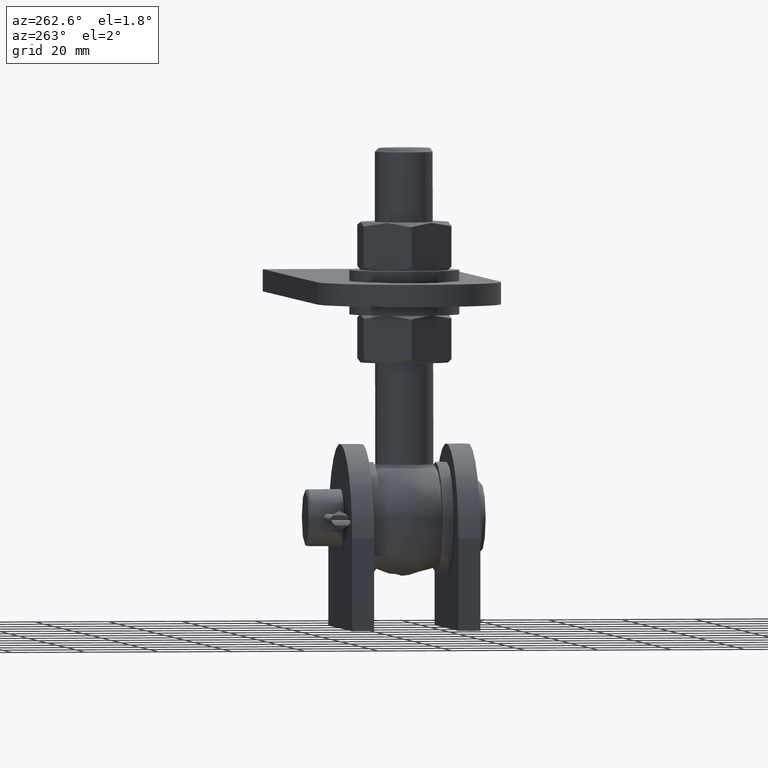
[diagram: clean part render]
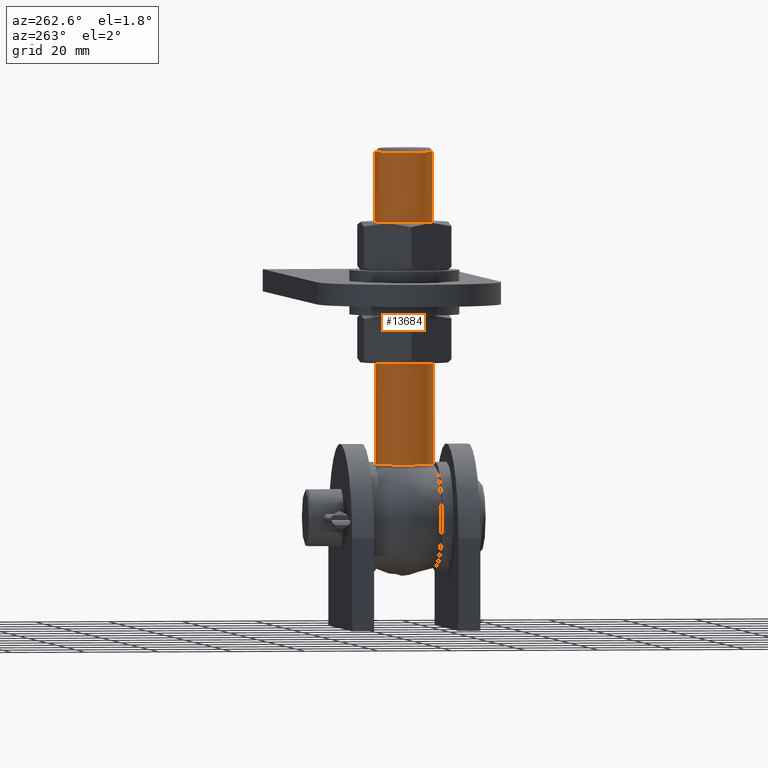
[diagram: same view with one face highlighted and labeled with its STEP entity id]
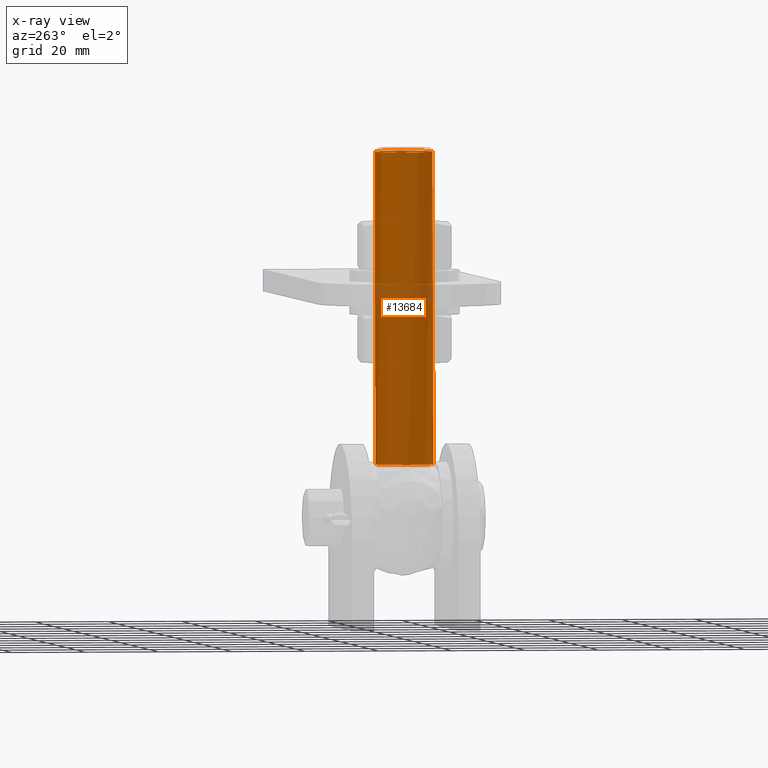
[diagram: x-ray of the same camera — body ghosted, the highlighted face saturated]
A machine part, auxiliary view. The second image highlights one B-rep face of the part: STEP entity #13684.
The next image is the same camera in x-ray: the body ghosted, the highlighted face saturated — about 7% of this face is hidden behind the body in this view.
In plain terms, the highlighted cylindrical surface (bore or boss wall) has radius 8 mm, axis along (0, 0, 1).
Its self-contained STEP definition (entity closure, byte-faithful):
#59 = DIRECTION ( 'NONE',  ( 1.000000000000000000, 0.000000000000000000, 0.000000000000000000 ) ) ;
#293 = DIRECTION ( 'NONE',  ( 1.000000000000000000, 0.000000000000000000, 0.000000000000000000 ) ) ;
#385 = CARTESIAN_POINT ( 'NONE',  ( 0.000000000000000000, 0.000000000000000000, 99.00000000000000000 ) ) ;
#604 = VERTEX_POINT ( 'NONE', #23061 ) ;
#696 = AXIS2_PLACEMENT_3D ( 'NONE', #385, #11854, #293 ) ;
#1807 = AXIS2_PLACEMENT_3D ( 'NONE', #14452, #7557, #27639 ) ;
#1923 = EDGE_LOOP ( 'NONE', ( #23503 ) ) ;
#4468 = CARTESIAN_POINT ( 'NONE',  ( 0.000000000000000000, 0.000000000000000000, -16.00200000000000244 ) ) ;
#5714 = EDGE_CURVE ( 'NONE', #27531, #27531, #28356, .T. ) ;
#5749 = CYLINDRICAL_SURFACE ( 'NONE', #23830, 8.000000000000000000 ) ;
#7557 = DIRECTION ( 'NONE',  ( -0.000000000000000000, -0.000000000000000000, 1.000000000000000000 ) ) ;
#9205 = EDGE_LOOP ( 'NONE', ( #9845 ) ) ;
#9251 = CIRCLE ( 'NONE', #1807, 8.000000000000000000 ) ;
#9845 = ORIENTED_EDGE ( 'NONE', *, *, #24495, .T. ) ;
#11854 = DIRECTION ( 'NONE',  ( 0.000000000000000000, 0.000000000000000000, -1.000000000000000000 ) ) ;
#13684 = ADVANCED_FACE ( 'NONE', ( #24622, #14813 ), #5749, .T. ) ;
#14452 = CARTESIAN_POINT ( 'NONE',  ( 0.000000000000000000, 0.000000000000000000, 14.42220510185595828 ) ) ;
#14813 = FACE_OUTER_BOUND ( 'NONE', #9205, .T. ) ;
#16538 = CARTESIAN_POINT ( 'NONE',  ( 8.000000000000000000, 0.000000000000000000, 99.00000000000000000 ) ) ;
#20405 = DIRECTION ( 'NONE',  ( 0.000000000000000000, 0.000000000000000000, 1.000000000000000000 ) ) ;
#23061 = CARTESIAN_POINT ( 'NONE',  ( -8.000000000000000000, 0.000000000000000000, 14.42220510185595828 ) ) ;
#23503 = ORIENTED_EDGE ( 'NONE', *, *, #5714, .T. ) ;
#23830 = AXIS2_PLACEMENT_3D ( 'NONE', #4468, #20405, #59 ) ;
#24495 = EDGE_CURVE ( 'NONE', #604, #604, #9251, .T. ) ;
#24622 = FACE_OUTER_BOUND ( 'NONE', #1923, .T. ) ;
#27531 = VERTEX_POINT ( 'NONE', #16538 ) ;
#27639 = DIRECTION ( 'NONE',  ( -1.000000000000000000, 0.000000000000000000, 0.000000000000000000 ) ) ;
#28356 = CIRCLE ( 'NONE', #696, 8.000000000000000000 ) ;